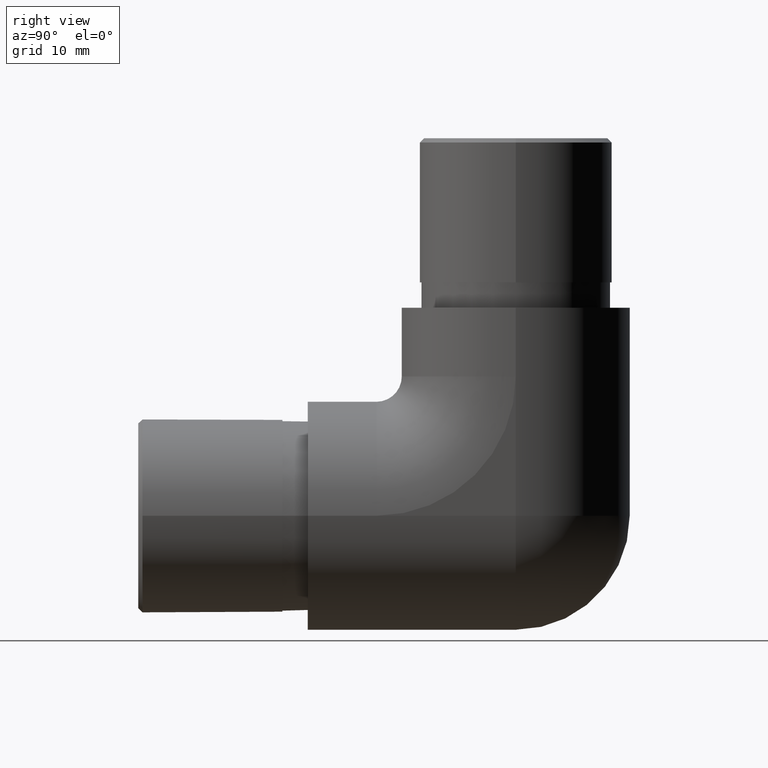
[diagram: clean part render]
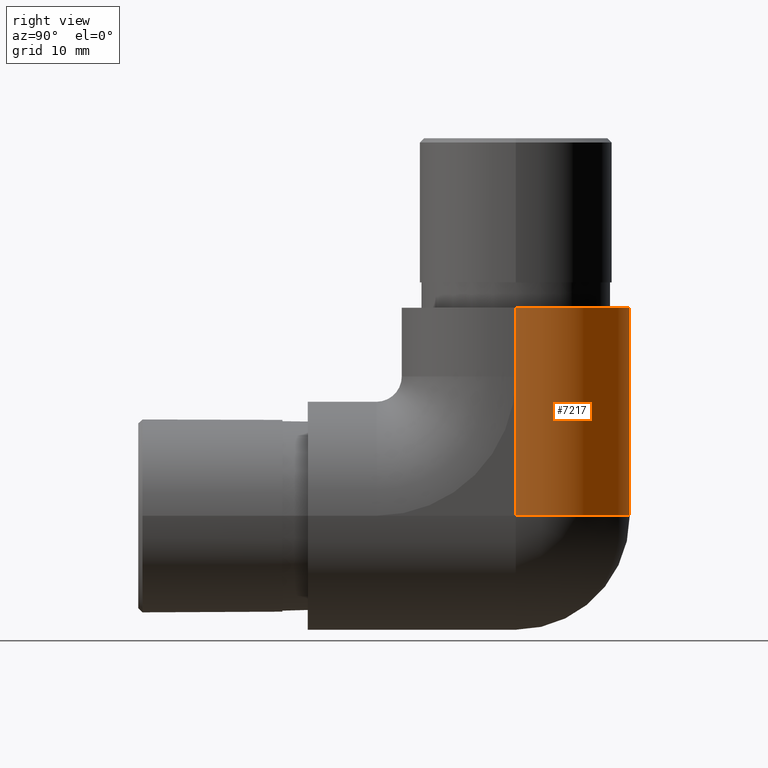
[diagram: same view with one face highlighted and labeled with its STEP entity id]
A machine part, right view. The second image highlights one B-rep face of the part: STEP entity #7217.
In plain terms, the highlighted cylindrical surface (partial cylindrical patch) has radius 13.45 mm, axis along (0, -0, 1).
Its self-contained STEP definition (entity closure, byte-faithful):
#59 = DIRECTION ( 'NONE',  ( 6.448786156047610700E-017, -0.0000000000000000000, 1.000000000000000000 ) ) ;
#109 = VERTEX_POINT ( 'NONE', #12426 ) ;
#440 = FACE_OUTER_BOUND ( 'NONE', #6091, .T. ) ;
#629 = VERTEX_POINT ( 'NONE', #13053 ) ;
#1109 = CYLINDRICAL_SURFACE ( 'NONE', #8174, 13.44999999999999900 ) ;
#1157 = CARTESIAN_POINT ( 'NONE',  ( 13.44999999999999900, 24.54999999999999700, -13.45000000000000100 ) ) ;
#1180 = CARTESIAN_POINT ( 'NONE',  ( 13.44999999999999900, 24.54999999999999700, -13.45000000000000100 ) ) ;
#1874 = CARTESIAN_POINT ( 'NONE',  ( -1.734723475976806900E-015, 38.00000000000000000, -2.602085213965210600E-015 ) ) ;
#3000 = AXIS2_PLACEMENT_3D ( 'NONE', #3974, #10363, #4885 ) ;
#3226 = EDGE_CURVE ( 'NONE', #4201, #9160, #12166, .T. ) ;
#3887 = VECTOR ( 'NONE', #59, 1000.000000000000000 ) ;
#3892 = LINE ( 'NONE', #4664, #10928 ) ;
#3974 = CARTESIAN_POINT ( 'NONE',  ( 7.158152633212852900E-016, 24.54999999999999700, 24.55000000000000400 ) ) ;
#4125 = ORIENTED_EDGE ( 'NONE', *, *, #3226, .F. ) ;
#4201 = VERTEX_POINT ( 'NONE', #1874 ) ;
#4664 = CARTESIAN_POINT ( 'NONE',  ( 2.450538739298092900E-015, 38.00000000000000000, 24.55000000000000100 ) ) ;
#4849 = ORIENTED_EDGE ( 'NONE', *, *, #8373, .T. ) ;
#4885 = DIRECTION ( 'NONE',  ( -1.000000000000000000, 0.0000000000000000000, 0.0000000000000000000 ) ) ;
#5333 = DIRECTION ( 'NONE',  ( -6.448786156047610700E-017, 0.0000000000000000000, -1.000000000000000000 ) ) ;
#5791 = EDGE_CURVE ( 'NONE', #11492, #629, #9462, .T. ) ;
#6091 = EDGE_LOOP ( 'NONE', ( #4849, #10193, #12290, #11286, #4125 ) ) ;
#6690 = CARTESIAN_POINT ( 'NONE',  ( 13.44999999999999900, 24.54999999999999700, 24.55000000000000100 ) ) ;
#7217 = ADVANCED_FACE ( 'NONE', ( #440 ), #1109, .T. ) ;
#7781 = DIRECTION ( 'NONE',  ( 1.000000000000000000, 0.0000000000000000000, -1.289757231209522100E-016 ) ) ;
#8174 = AXIS2_PLACEMENT_3D ( 'NONE', #8800, #11984, #7781 ) ;
#8373 = EDGE_CURVE ( 'NONE', #4201, #629, #3892, .T. ) ;
#8404 = LINE ( 'NONE', #1180, #3887 ) ;
#8604 = VECTOR ( 'NONE', #12807, 1000.000000000000000 ) ;
#8800 = CARTESIAN_POINT ( 'NONE',  ( -1.734723475976807100E-015, 24.54999999999999700, -13.44999999999999900 ) ) ;
#8983 = DIRECTION ( 'NONE',  ( 6.448786156047610700E-017, -0.0000000000000000000, 1.000000000000000000 ) ) ;
#9160 = VERTEX_POINT ( 'NONE', #12930 ) ;
#9462 = CIRCLE ( 'NONE', #3000, 13.44999999999999900 ) ;
#9557 = DIRECTION ( 'NONE',  ( -1.000000000000000000, 0.0000000000000000000, 6.448786156047612000E-017 ) ) ;
#9857 = EDGE_CURVE ( 'NONE', #9160, #109, #13786, .T. ) ;
#10191 = AXIS2_PLACEMENT_3D ( 'NONE', #11725, #5333, #9557 ) ;
#10193 = ORIENTED_EDGE ( 'NONE', *, *, #5791, .F. ) ;
#10363 = DIRECTION ( 'NONE',  ( -0.0000000000000000000, -0.0000000000000000000, 1.000000000000000000 ) ) ;
#10928 = VECTOR ( 'NONE', #8983, 1000.000000000000000 ) ;
#11286 = ORIENTED_EDGE ( 'NONE', *, *, #9857, .F. ) ;
#11492 = VERTEX_POINT ( 'NONE', #6690 ) ;
#11725 = CARTESIAN_POINT ( 'NONE',  ( -8.673617379884034500E-016, 24.54999999999999700, -2.602085213965210600E-015 ) ) ;
#11984 = DIRECTION ( 'NONE',  ( 6.448786156047610700E-017, -0.0000000000000000000, 1.000000000000000000 ) ) ;
#12166 = CIRCLE ( 'NONE', #10191, 13.44999999999999900 ) ;
#12290 = ORIENTED_EDGE ( 'NONE', *, *, #13521, .F. ) ;
#12426 = CARTESIAN_POINT ( 'NONE',  ( 13.44999999999999900, 24.54999999999999700, 16.44999999999999900 ) ) ;
#12807 = DIRECTION ( 'NONE',  ( 6.448786156047610700E-017, -0.0000000000000000000, 1.000000000000000000 ) ) ;
#12930 = CARTESIAN_POINT ( 'NONE',  ( 13.44999999999999900, 24.54999999999999700, -3.469446951953614200E-015 ) ) ;
#13053 = CARTESIAN_POINT ( 'NONE',  ( -1.734723475976807100E-015, 38.00000000000000000, 24.55000000000000100 ) ) ;
#13521 = EDGE_CURVE ( 'NONE', #109, #11492, #8404, .T. ) ;
#13786 = LINE ( 'NONE', #1157, #8604 ) ;